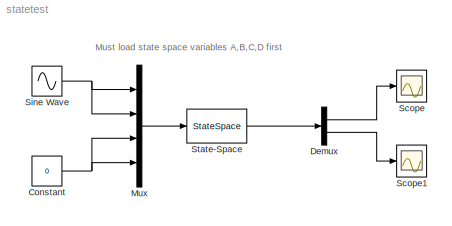
MODEL statetest
KIND model
BLOCK [Constant] Constant
  SID = 1
  Value = 0
BLOCK [Demux] Demux
  Outputs = 2
  Ports = [1, 2]
  SID = 2
BLOCK [Mux] Mux
  DisplayOption = bar
  Ports = [4, 1]
  SID = 3
BLOCK [Scope] Scope
  Floating = off
  NumInputPorts = 1
  Ports = [1]
  SID = 4
  ScopeSpecificationString = C++SS(StrPVP('Location','[140, 428, 464, 667]'),StrPVP('Open','on'),StrPVP('TickLabels','OneTimeTick'),StrPVP('ZoomMode','on'),MxPVP('AxesTitles',54,'struct(''axes1'',''%<SignalLabel>'')'),StrPVP('Grid','on'),StrPVP('TimeRange','auto'),StrPVP('YMin','-1'),StrPVP('YMax','1'),StrPVP('SaveToWorkspace','off'),StrPVP('SaveName','ScopeData'),StrPVP('DataFormat','StructureWithTime'),StrPVP('LimitMaxRows'...<+130ch>
BLOCK [Scope] Scope1
  Floating = off
  NumInputPorts = 1
  Ports = [1]
  SID = 5
  ScopeSpecificationString = C++SS(StrPVP('Location','[491, 437, 815, 676]'),StrPVP('Open','on'),StrPVP('TickLabels','OneTimeTick'),StrPVP('ZoomMode','on'),MxPVP('AxesTitles',54,'struct(''axes1'',''%<SignalLabel>'')'),StrPVP('Grid','on'),StrPVP('TimeRange','auto'),StrPVP('YMin','-1'),StrPVP('YMax','1'),StrPVP('SaveToWorkspace','off'),StrPVP('SaveName','ScopeData'),StrPVP('DataFormat','StructureWithTime'),StrPVP('LimitMaxRows'...<+130ch>
BLOCK [Sin] Sine Wave
  Amplitude = 200
  Frequency = 2*pi
  Ports = [0, 1]
  SID = 6
  SampleTime = 0
BLOCK [StateSpace] State-Space
  A = A
  B = B
  C = C
  D = D
  InitialCondition = 0
  Ports = [1, 1]
  SID = 7
ANNOTATION (root): Must load state space variables A,B,C,D first
NET Constant:1 -> Mux:3, Mux:4
LINE Demux:1 -> Scope:1
LINE Demux:2 -> Scope1:1
LINE Mux:1 -> State-Space:1
NET Sine Wave:1 -> Mux:1, Mux:2
LINE State-Space:1 -> Demux:1
note: NET lines group one-source signal fan-out (src -> all destinations, sorted); 1:1 wires keep LINE
